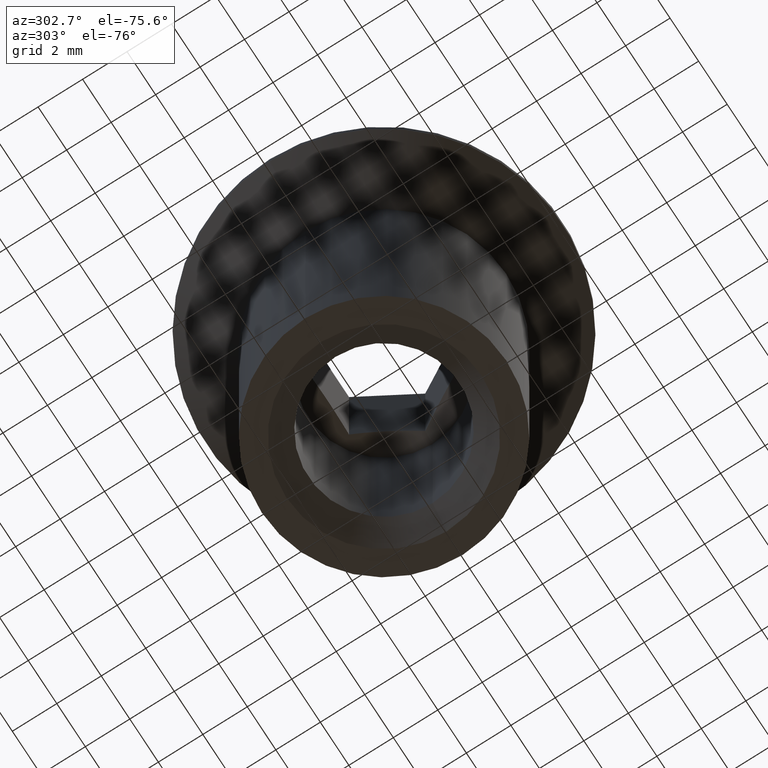
[diagram: clean part render]
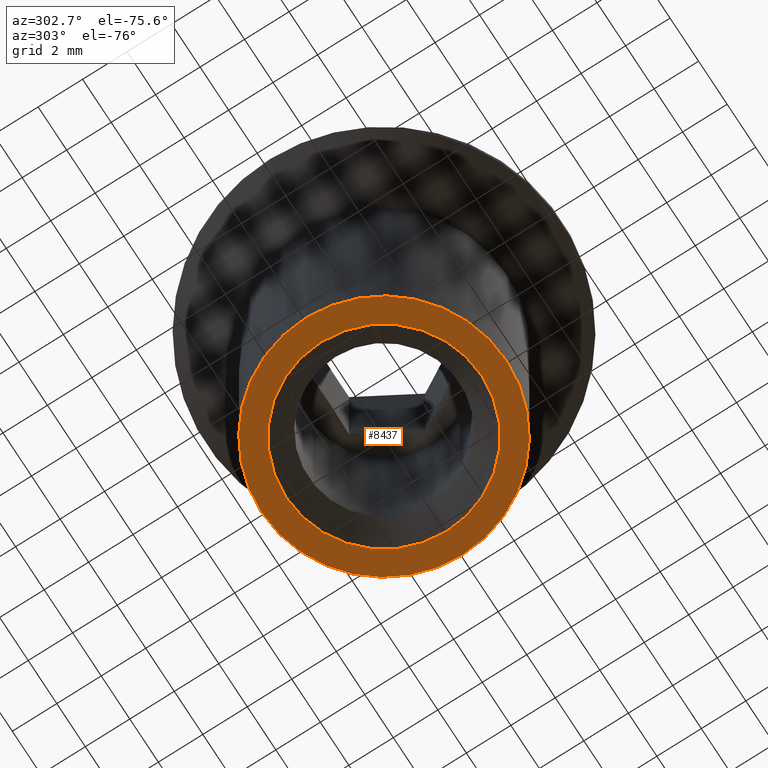
[diagram: same view with one face highlighted and labeled with its STEP entity id]
A machine part, auxiliary view. The second image highlights one B-rep face of the part: STEP entity #8437.
In plain terms, the highlighted planar face has unit normal (-0, 0, -1).
Its self-contained STEP definition (entity closure, byte-faithful):
#116 = EDGE_CURVE ( 'NONE', #1635, #9836, #3306, .T. ) ;
#458 = PLANE ( 'NONE',  #6135 ) ;
#491 = DIRECTION ( 'NONE',  ( -1.000000000000000000, 0.0000000000000000000, 0.0000000000000000000 ) ) ;
#619 = CIRCLE ( 'NONE', #8668, 5.500000000000000000 ) ;
#1635 = VERTEX_POINT ( 'NONE', #11624 ) ;
#1882 = CIRCLE ( 'NONE', #4911, 5.500000000000000000 ) ;
#2030 = CARTESIAN_POINT ( 'NONE',  ( 4.399999999999997700, 5.388445916248351100E-016, -8.000000000000000000 ) ) ;
#2135 = CARTESIAN_POINT ( 'NONE',  ( 5.500000000000000000, -1.224646799147353300E-015, -8.000000000000000000 ) ) ;
#2534 = ORIENTED_EDGE ( 'NONE', *, *, #11547, .T. ) ;
#3306 = CIRCLE ( 'NONE', #10261, 4.399999999999997700 ) ;
#3468 = VERTEX_POINT ( 'NONE', #2135 ) ;
#4212 = EDGE_CURVE ( 'NONE', #8657, #3468, #619, .T. ) ;
#4263 = DIRECTION ( 'NONE',  ( -1.000000000000000000, 0.0000000000000000000, 0.0000000000000000000 ) ) ;
#4577 = DIRECTION ( 'NONE',  ( -1.000000000000000000, 0.0000000000000000000, 0.0000000000000000000 ) ) ;
#4911 = AXIS2_PLACEMENT_3D ( 'NONE', #9359, #13203, #4577 ) ;
#5278 = ORIENTED_EDGE ( 'NONE', *, *, #116, .T. ) ;
#5413 = EDGE_LOOP ( 'NONE', ( #7095, #12289 ) ) ;
#5513 = DIRECTION ( 'NONE',  ( -0.0000000000000000000, -0.0000000000000000000, -1.000000000000000000 ) ) ;
#5980 = CIRCLE ( 'NONE', #11376, 4.399999999999997700 ) ;
#6135 = AXIS2_PLACEMENT_3D ( 'NONE', #7967, #11644, #4263 ) ;
#6872 = FACE_BOUND ( 'NONE', #13675, .T. ) ;
#7095 = ORIENTED_EDGE ( 'NONE', *, *, #4212, .T. ) ;
#7668 = FACE_OUTER_BOUND ( 'NONE', #5413, .T. ) ;
#7967 = CARTESIAN_POINT ( 'NONE',  ( 0.0000000000000000000, 5.499999999999998200, -8.000000000000000000 ) ) ;
#8437 = ADVANCED_FACE ( 'NONE', ( #6872, #7668 ), #458, .T. ) ;
#8657 = VERTEX_POINT ( 'NONE', #10931 ) ;
#8668 = AXIS2_PLACEMENT_3D ( 'NONE', #9508, #5513, #14423 ) ;
#8706 = DIRECTION ( 'NONE',  ( -1.000000000000000000, 0.0000000000000000000, 0.0000000000000000000 ) ) ;
#9359 = CARTESIAN_POINT ( 'NONE',  ( 0.0000000000000000000, -1.898202538678397600E-015, -8.000000000000000000 ) ) ;
#9508 = CARTESIAN_POINT ( 'NONE',  ( 0.0000000000000000000, -1.898202538678397600E-015, -8.000000000000000000 ) ) ;
#9836 = VERTEX_POINT ( 'NONE', #2030 ) ;
#10261 = AXIS2_PLACEMENT_3D ( 'NONE', #10903, #12171, #491 ) ;
#10903 = CARTESIAN_POINT ( 'NONE',  ( 0.0000000000000000000, 0.0000000000000000000, -8.000000000000000000 ) ) ;
#10931 = CARTESIAN_POINT ( 'NONE',  ( -5.500000000000000000, -1.898202538678397600E-015, -8.000000000000000000 ) ) ;
#11376 = AXIS2_PLACEMENT_3D ( 'NONE', #12611, #16326, #8706 ) ;
#11547 = EDGE_CURVE ( 'NONE', #9836, #1635, #5980, .T. ) ;
#11624 = CARTESIAN_POINT ( 'NONE',  ( -4.399999999999997700, 0.0000000000000000000, -8.000000000000000000 ) ) ;
#11644 = DIRECTION ( 'NONE',  ( -0.0000000000000000000, 0.0000000000000000000, -1.000000000000000000 ) ) ;
#12171 = DIRECTION ( 'NONE',  ( 0.0000000000000000000, 0.0000000000000000000, 1.000000000000000000 ) ) ;
#12289 = ORIENTED_EDGE ( 'NONE', *, *, #15629, .T. ) ;
#12611 = CARTESIAN_POINT ( 'NONE',  ( 0.0000000000000000000, 0.0000000000000000000, -8.000000000000000000 ) ) ;
#13203 = DIRECTION ( 'NONE',  ( -0.0000000000000000000, -0.0000000000000000000, -1.000000000000000000 ) ) ;
#13675 = EDGE_LOOP ( 'NONE', ( #5278, #2534 ) ) ;
#14423 = DIRECTION ( 'NONE',  ( -1.000000000000000000, 0.0000000000000000000, 0.0000000000000000000 ) ) ;
#15629 = EDGE_CURVE ( 'NONE', #3468, #8657, #1882, .T. ) ;
#16326 = DIRECTION ( 'NONE',  ( 0.0000000000000000000, 0.0000000000000000000, 1.000000000000000000 ) ) ;